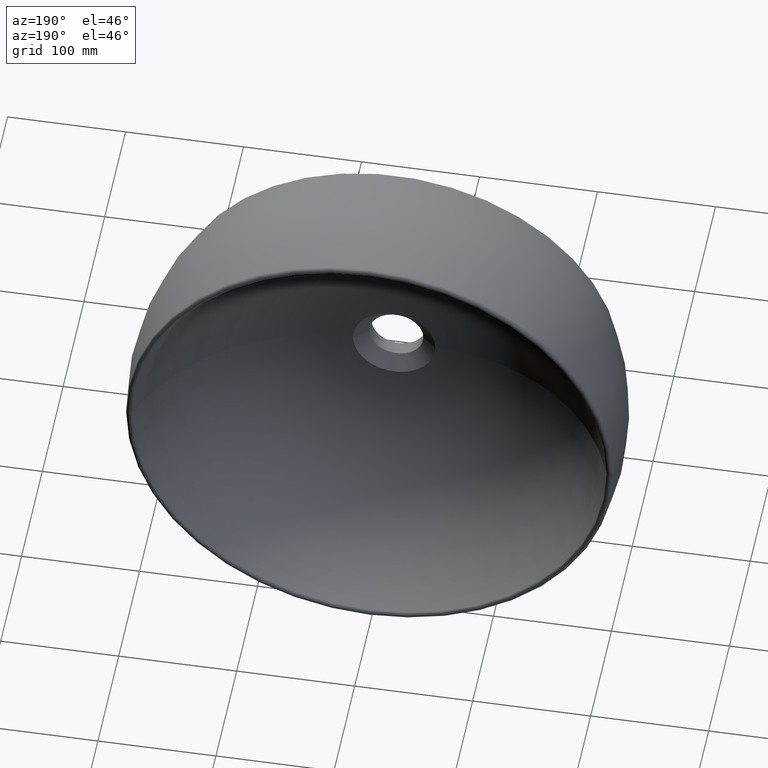
[diagram: clean part render]
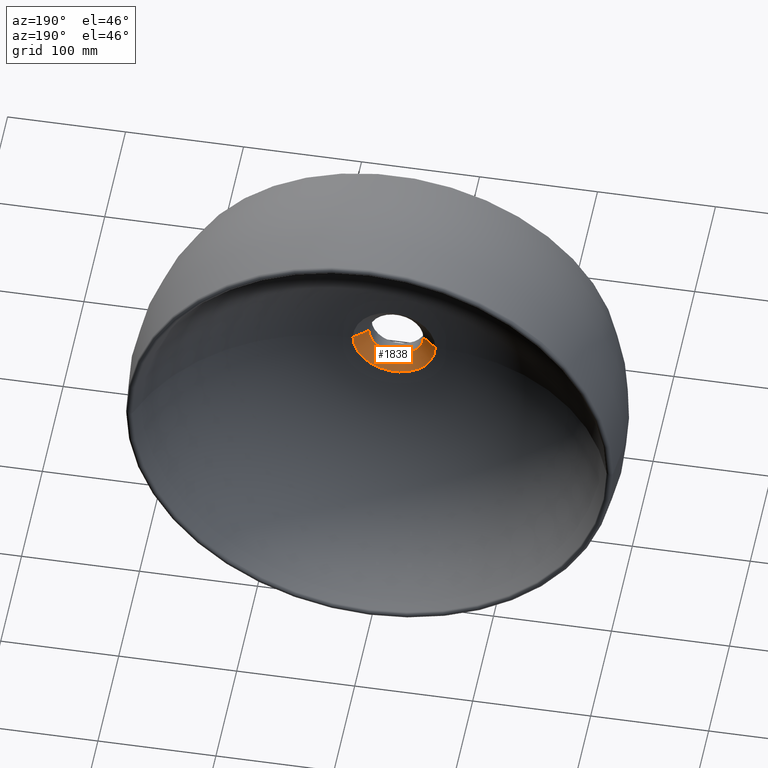
[diagram: same view with one face highlighted and labeled with its STEP entity id]
A machine part, auxiliary view. The second image highlights one B-rep face of the part: STEP entity #1838.
In plain terms, the highlighted conical surface has half-angle 50 deg.
Its self-contained STEP definition (entity closure, byte-faithful):
#35 = VECTOR ( 'NONE', #713, 1000.000000000000200 ) ;
#37 = VERTEX_POINT ( 'NONE', #1243 ) ;
#84 = DIRECTION ( 'NONE',  ( -1.246832498358330100E-016, 1.000000000000000000, -0.0000000000000000000 ) ) ;
#122 = DIRECTION ( 'NONE',  ( -1.246832498358330100E-016, 1.000000000000000000, -0.0000000000000000000 ) ) ;
#133 = EDGE_CURVE ( 'NONE', #1426, #37, #1027, .T. ) ;
#141 = DIRECTION ( 'NONE',  ( -1.000000000000000000, -1.490417433511954700E-016, 0.0000000000000000000 ) ) ;
#260 = CARTESIAN_POINT ( 'NONE',  ( -1.412650336100684000E-031, 1.132991270247352100E-015, 0.0000000000000000000 ) ) ;
#390 = ORIENTED_EDGE ( 'NONE', *, *, #811, .T. ) ;
#422 = VERTEX_POINT ( 'NONE', #2117 ) ;
#439 = CIRCLE ( 'NONE', #1444, 34.91753592594217500 ) ;
#501 = CONICAL_SURFACE ( 'NONE', #1080, 34.91753592594217500, 0.8726646259971674300 ) ;
#537 = CARTESIAN_POINT ( 'NONE',  ( 34.91753592594217500, 10.00000000000002000, 4.276164860581779800E-015 ) ) ;
#553 = CIRCLE ( 'NONE', #834, 23.00000000000000000 ) ;
#713 = DIRECTION ( 'NONE',  ( -0.7660444431189797900, 0.6427876096865371400, 0.0000000000000000000 ) ) ;
#811 = EDGE_CURVE ( 'NONE', #422, #37, #439, .T. ) ;
#834 = AXIS2_PLACEMENT_3D ( 'NONE', #260, #84, #2241 ) ;
#891 = CARTESIAN_POINT ( 'NONE',  ( -1.246832498358331900E-015, 10.00000000000001400, 0.0000000000000000000 ) ) ;
#1027 = LINE ( 'NONE', #1092, #35 ) ;
#1080 = AXIS2_PLACEMENT_3D ( 'NONE', #2099, #2084, #2265 ) ;
#1092 = CARTESIAN_POINT ( 'NONE',  ( -34.91753592594217500, 10.00000000000000900, 0.0000000000000000000 ) ) ;
#1243 = CARTESIAN_POINT ( 'NONE',  ( -34.91753592594217500, 10.00000000000000900, 0.0000000000000000000 ) ) ;
#1364 = CARTESIAN_POINT ( 'NONE',  ( -23.00000000000000000, -1.734723475976807100E-015, 0.0000000000000000000 ) ) ;
#1425 = VECTOR ( 'NONE', #1984, 1000.000000000000100 ) ;
#1426 = VERTEX_POINT ( 'NONE', #1364 ) ;
#1444 = AXIS2_PLACEMENT_3D ( 'NONE', #891, #122, #141 ) ;
#1445 = VERTEX_POINT ( 'NONE', #1691 ) ;
#1549 = FACE_OUTER_BOUND ( 'NONE', #1703, .T. ) ;
#1691 = CARTESIAN_POINT ( 'NONE',  ( 23.00000000000000000, 4.000706016471511400E-015, 2.816687638038912400E-015 ) ) ;
#1703 = EDGE_LOOP ( 'NONE', ( #2194, #2281, #390, #1904 ) ) ;
#1838 = ADVANCED_FACE ( 'NONE', ( #1549 ), #501, .F. ) ;
#1881 = EDGE_CURVE ( 'NONE', #1445, #1426, #553, .T. ) ;
#1904 = ORIENTED_EDGE ( 'NONE', *, *, #133, .F. ) ;
#1949 = EDGE_CURVE ( 'NONE', #1445, #422, #1950, .T. ) ;
#1950 = LINE ( 'NONE', #537, #1425 ) ;
#1984 = DIRECTION ( 'NONE',  ( 0.7660444431189796800, 0.6427876096865374800, 9.381338752702753000E-017 ) ) ;
#2084 = DIRECTION ( 'NONE',  ( -1.246832498358330100E-016, 1.000000000000000000, -0.0000000000000000000 ) ) ;
#2099 = CARTESIAN_POINT ( 'NONE',  ( -1.246832498358331900E-015, 10.00000000000001400, 0.0000000000000000000 ) ) ;
#2117 = CARTESIAN_POINT ( 'NONE',  ( 34.91753592594217500, 10.00000000000002000, 4.276164860581779800E-015 ) ) ;
#2194 = ORIENTED_EDGE ( 'NONE', *, *, #1881, .F. ) ;
#2241 = DIRECTION ( 'NONE',  ( -1.000000000000000000, -1.246832498358330100E-016, 0.0000000000000000000 ) ) ;
#2265 = DIRECTION ( 'NONE',  ( -1.000000000000000000, -1.490417433511954700E-016, 0.0000000000000000000 ) ) ;
#2281 = ORIENTED_EDGE ( 'NONE', *, *, #1949, .T. ) ;